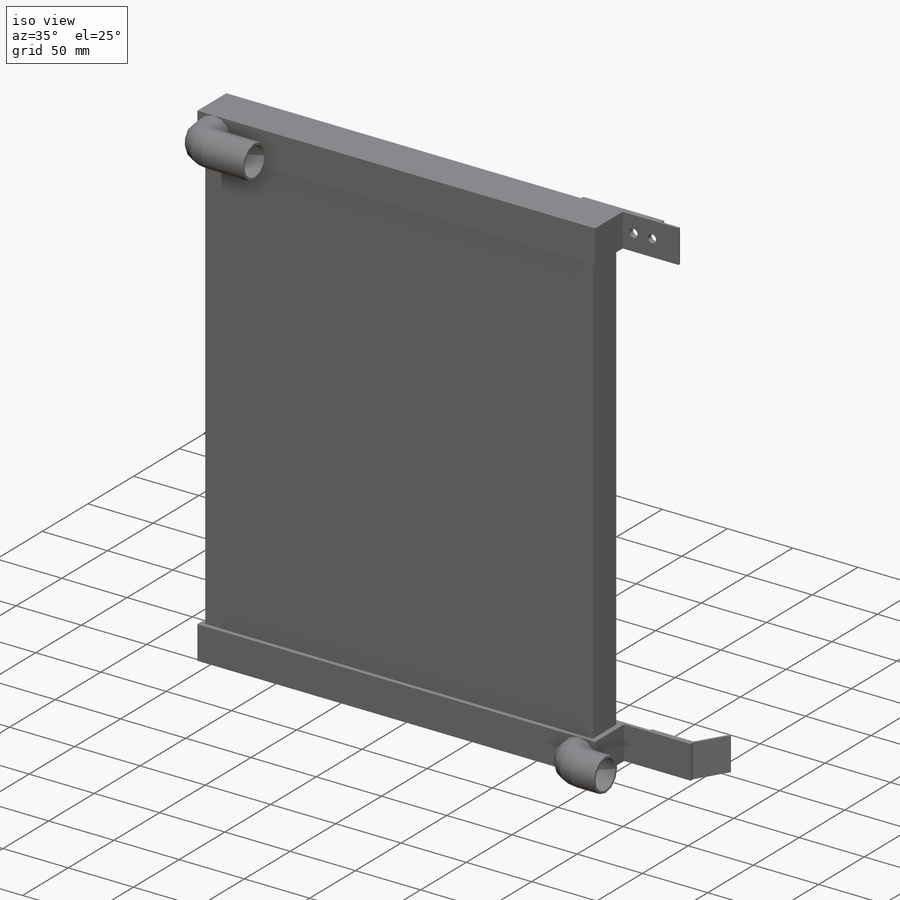
[diagram: iso view]
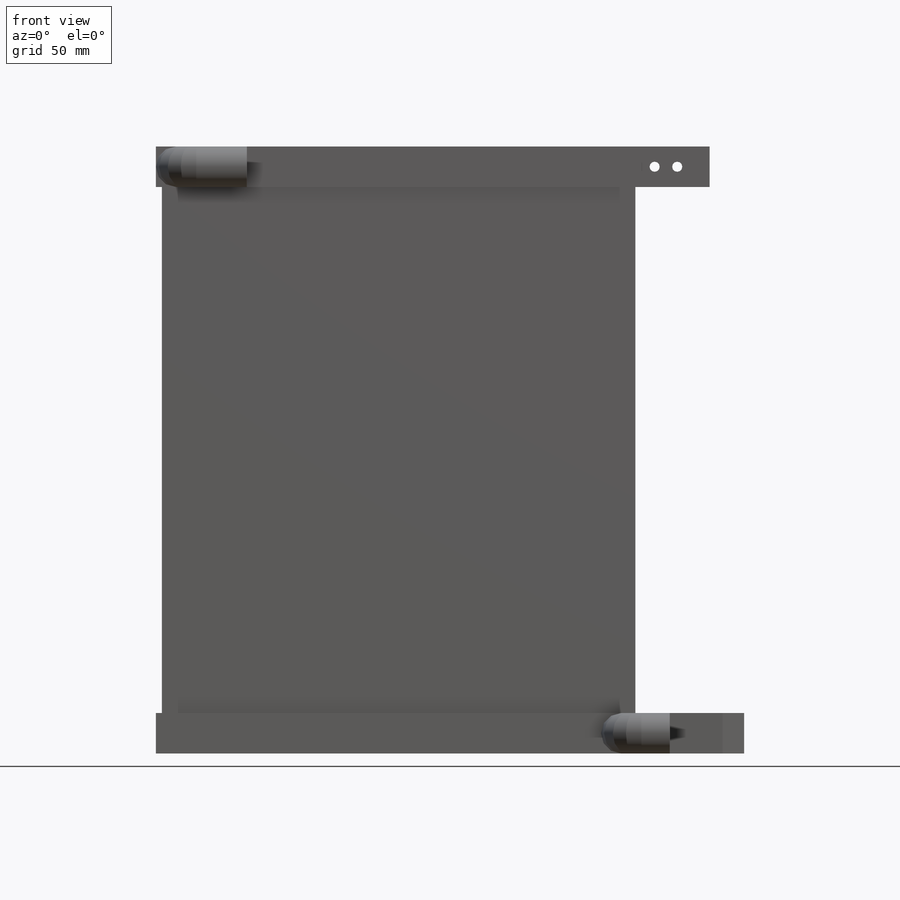
[diagram: front view]
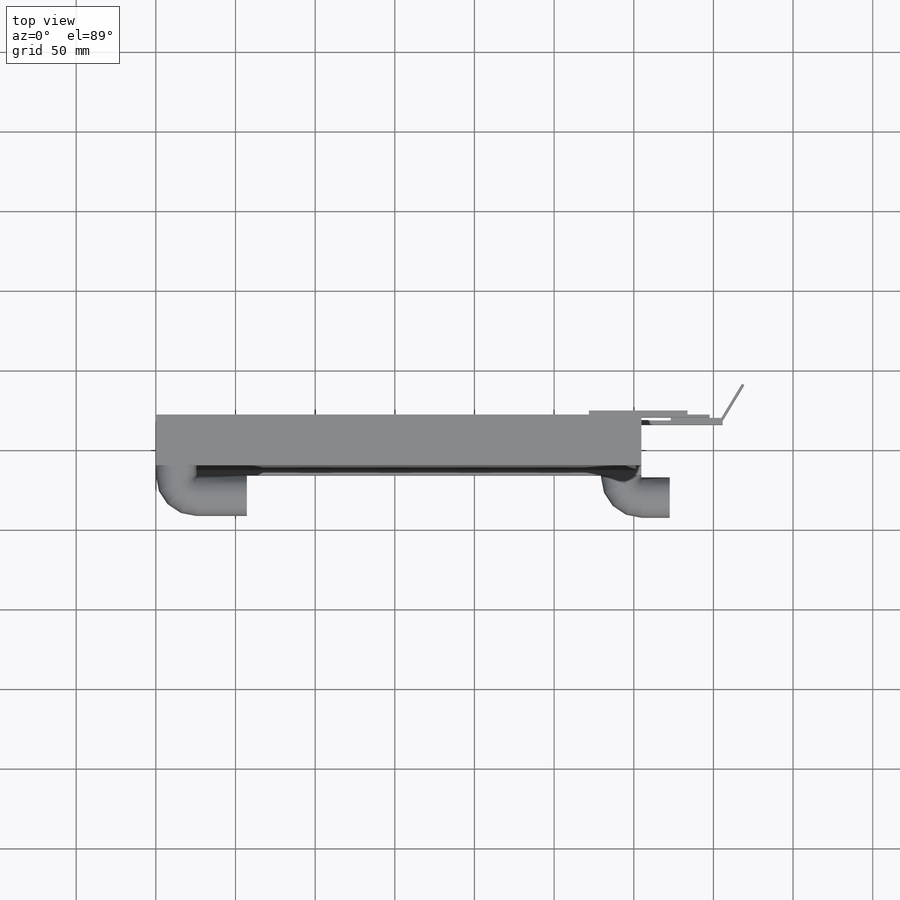
[diagram: top view]
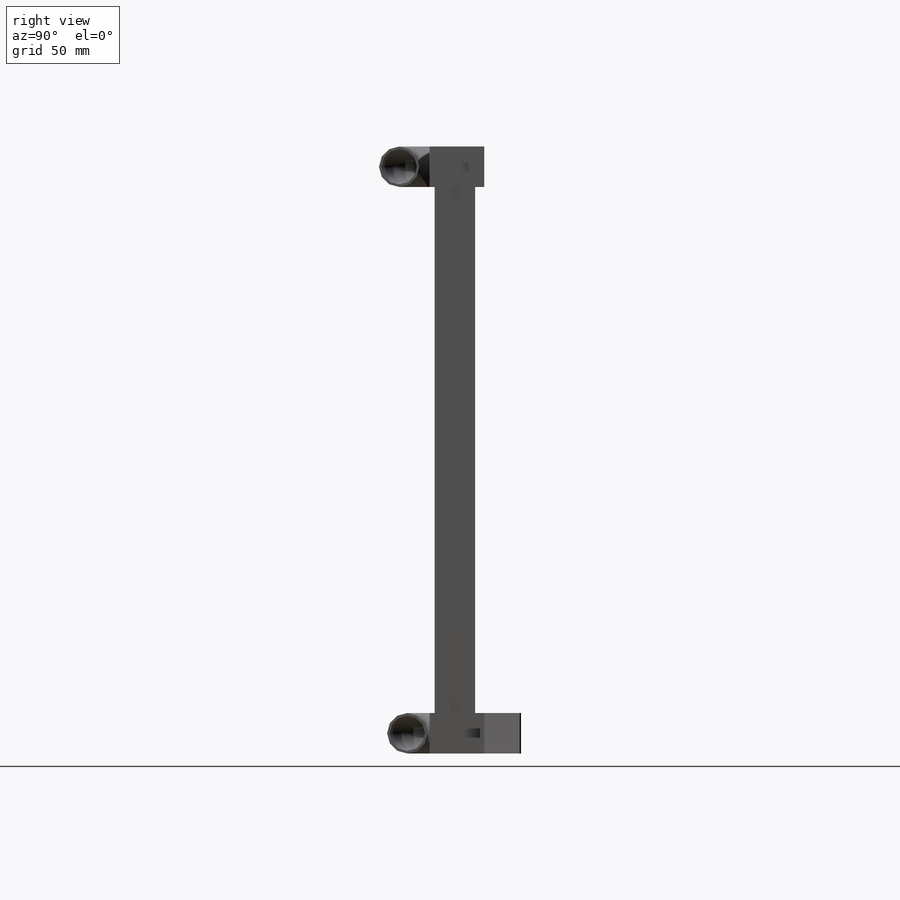
[diagram: right view]
SOLIDWORKS PART (.sldprt)
format: sldprt  version: not decoded by parser v0  size: 462,336 bytes
history: native  units: mm
features: sketch x15, extrude x5, plane x3, sweep x2, cut_extrude x2, material x1 (+11 scaffold rows collapsed)
feature tree (39):
  scaffold x11  (default folders/planes/origin — collapsed)
  material  "6061-T6 (SS)"
  sketch  "Sketch1"  dims[D1=25.4mm D2=31.75mm]
  extrude  "Boss-Extrude1"  Depth=304.8mm
  sketch  "Sketch2"  dims[D1=25.4mm D2=297.18mm]
  extrude  "Boss-Extrude2"  Depth=330.2mm
  sketch  "Sketch3"
  extrude  "Boss-Extrude3"  Depth=25.4mm
  sketch  "Sketch9"  dims[D1=25.4mm D2=12.7mm D3=1.651mm]
  plane  "Plane1"  Offset=12.7mm
  sketch  "Sketch10"  dims[c1.D3=12.7mm c1.D1=6.35mm c1.D2=31.75mm c1.D4=~28.129142mm c2.D4=~148.173565deg c3.D4=~14.833843mm c4.D4=60.0deg c4.D1=6.35mm c4.D2=31.75mm]
  sketch  "Sketch11"  dims[D3=25.4mm D1=12.7mm D2=12.7mm D4=1.651mm]
  plane  "Plane2"  Offset=12.7mm
  sketch  "Sketch12"  dims[D3=12.7mm D1=13.97mm D2=30.48mm]
  sweep  "Sweep2"
  sweep  "Sweep3"
  sketch  "Sketch13"
  sketch  "Sketch14"  dims[D1=43.18mm D2=33.02mm D5=2.54mm D6=2.54mm D7=5.0mm]
  sketch  "Sketch15"  dims[D1=~50.980628mm D2=33.02mm D5=2.54mm D6=2.54mm D7=5.0mm]
  sketch  "Sketch16"
  sketch  "Sketch20"
  cut_extrude  "Cut-Extrude2"  Depth=2.54mm
  sketch  "Sketch21"
  extrude  "Boss-Extrude8"  Depth=1.5875mm
  sketch  "Sketch22"  dims[D1=6.35mm D2=6.35mm]
  cut_extrude  "Cut-Extrude3"  Depth=9.2075mm
  sketch  "Sketch25"  dims[D1=1.5875mm D2=1.5875mm]
  extrude  "Boss-Extrude9"  Depth=25.4mm
  plane  "MidPlane"
decode coverage: 17 of 24 modeling features carry decoded parameters
note: ~ marks probable driven/reference dimensions
note: suppression state not decoded; provenance and decode notes live in map.json
